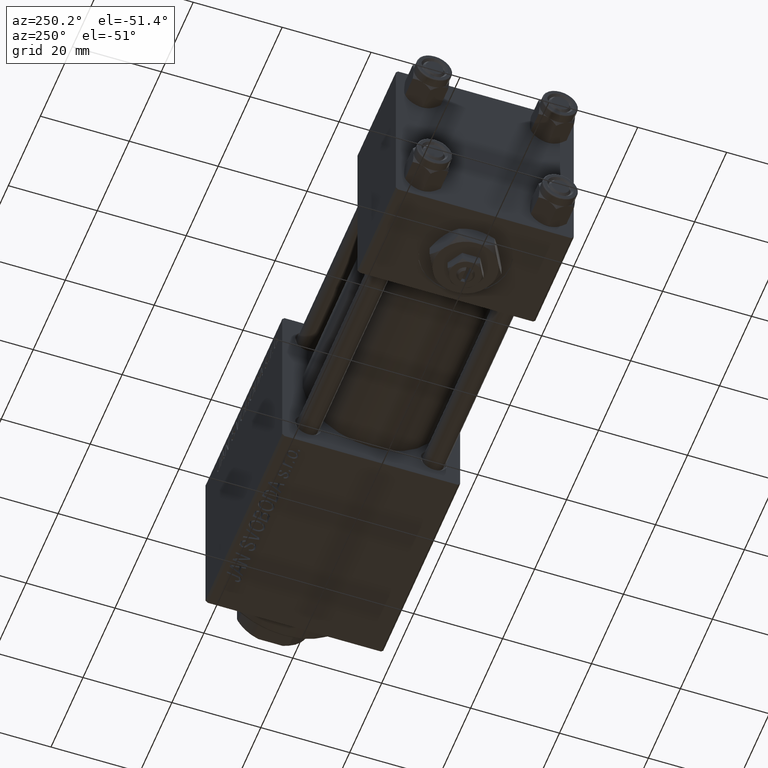
[diagram: clean part render]
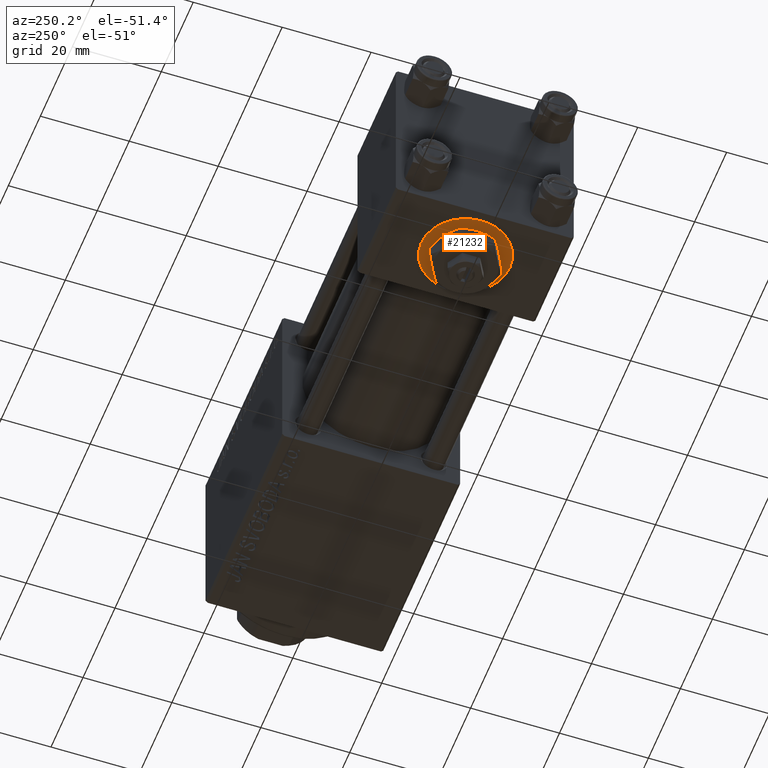
[diagram: same view with one face highlighted and labeled with its STEP entity id]
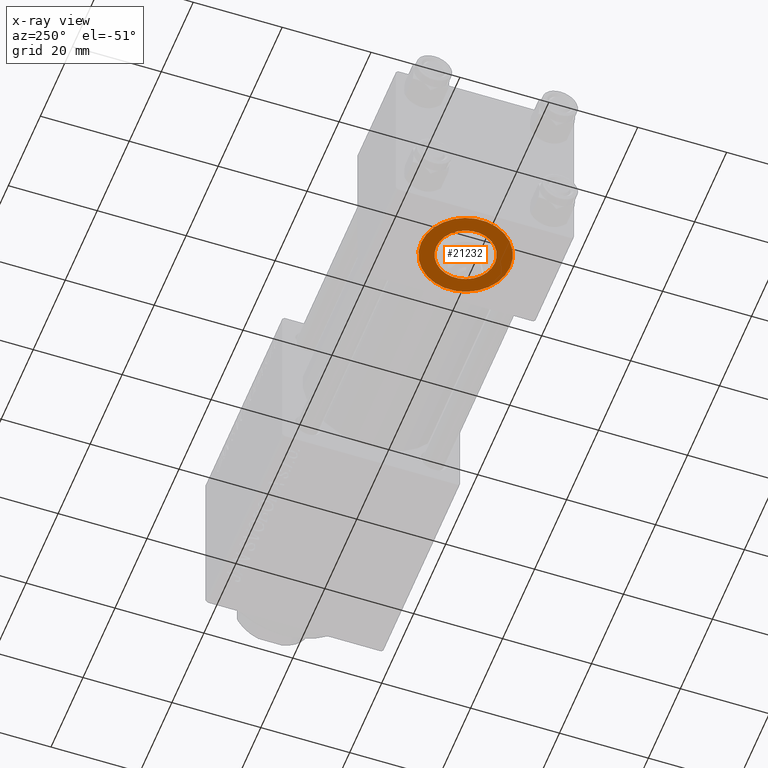
[diagram: x-ray of the same camera — body ghosted, the highlighted face saturated]
A machine part, auxiliary view. The second image highlights one B-rep face of the part: STEP entity #21232.
The next image is the same camera in x-ray: the body ghosted, the highlighted face saturated — about 0% of this face is hidden behind the body in this view.
In plain terms, the highlighted planar face has unit normal (0, -0, -1).
Its self-contained STEP definition (entity closure, byte-faithful):
#1170 = FACE_OUTER_BOUND ( 'NONE', #42435, .T. ) ;
#1188 = CIRCLE ( 'NONE', #8773, 10.00000000000000178 ) ;
#1545 = DIRECTION ( 'NONE',  ( 0.000000000000000000, 1.000000000000000000, 0.000000000000000000 ) ) ;
#4148 = DIRECTION ( 'NONE',  ( 0.000000000000000000, -1.734723475976806848E-16, -1.000000000000000000 ) ) ;
#7782 = DIRECTION ( 'NONE',  ( 0.000000000000000000, 1.000000000000000000, 0.000000000000000000 ) ) ;
#8773 = AXIS2_PLACEMENT_3D ( 'NONE', #45408, #30440, #1545 ) ;
#9542 = EDGE_CURVE ( 'NONE', #39718, #39564, #38296, .T. ) ;
#12289 = CARTESIAN_POINT ( 'NONE',  ( 12.00000000000000000, -4.904328641410902191E-15, -19.80000000000000426 ) ) ;
#14067 = EDGE_CURVE ( 'NONE', #34201, #21012, #19882, .T. ) ;
#14556 = ORIENTED_EDGE ( 'NONE', *, *, #46739, .T. ) ;
#15615 = EDGE_CURVE ( 'NONE', #21012, #34201, #32478, .T. ) ;
#17186 = PLANE ( 'NONE',  #34927 ) ;
#17319 = AXIS2_PLACEMENT_3D ( 'NONE', #43769, #27748, #7782 ) ;
#18594 = CARTESIAN_POINT ( 'NONE',  ( 12.00000000000000000, 6.579999999999994742, -19.80000000000000426 ) ) ;
#19882 = CIRCLE ( 'NONE', #38328, 6.580000000000000071 ) ;
#21012 = VERTEX_POINT ( 'NONE', #45351 ) ;
#21133 = FACE_BOUND ( 'NONE', #22068, .T. ) ;
#21232 = ADVANCED_FACE ( 'NONE', ( #21133, #1170 ), #17186, .T. ) ;
#22068 = EDGE_LOOP ( 'NONE', ( #41904, #42924 ) ) ;
#22233 = CARTESIAN_POINT ( 'NONE',  ( 12.00000000000000178, -10.00000000000000711, -19.80000000000000426 ) ) ;
#25325 = DIRECTION ( 'NONE',  ( 0.000000000000000000, 1.000000000000000000, -1.734723475976806848E-16 ) ) ;
#27444 = AXIS2_PLACEMENT_3D ( 'NONE', #38762, #41923, #49799 ) ;
#27748 = DIRECTION ( 'NONE',  ( 0.000000000000000000, -1.734723475976806848E-16, -1.000000000000000000 ) ) ;
#29467 = CARTESIAN_POINT ( 'NONE',  ( 12.00000000000000000, 9.999999999999996447, -19.80000000000000426 ) ) ;
#30440 = DIRECTION ( 'NONE',  ( 0.000000000000000000, -1.734723475976806848E-16, -1.000000000000000000 ) ) ;
#32478 = CIRCLE ( 'NONE', #27444, 6.580000000000000071 ) ;
#33222 = CARTESIAN_POINT ( 'NONE',  ( 12.00000000000000000, -4.904328641410901403E-15, -19.80000000000000426 ) ) ;
#34201 = VERTEX_POINT ( 'NONE', #18594 ) ;
#34927 = AXIS2_PLACEMENT_3D ( 'NONE', #33222, #49242, #25325 ) ;
#38296 = CIRCLE ( 'NONE', #17319, 10.00000000000000178 ) ;
#38328 = AXIS2_PLACEMENT_3D ( 'NONE', #12289, #4148, #43824 ) ;
#38762 = CARTESIAN_POINT ( 'NONE',  ( 12.00000000000000000, -4.904328641410902191E-15, -19.80000000000000426 ) ) ;
#39564 = VERTEX_POINT ( 'NONE', #22233 ) ;
#39718 = VERTEX_POINT ( 'NONE', #29467 ) ;
#41904 = ORIENTED_EDGE ( 'NONE', *, *, #14067, .F. ) ;
#41923 = DIRECTION ( 'NONE',  ( 0.000000000000000000, -1.734723475976806848E-16, -1.000000000000000000 ) ) ;
#42435 = EDGE_LOOP ( 'NONE', ( #42716, #14556 ) ) ;
#42716 = ORIENTED_EDGE ( 'NONE', *, *, #9542, .T. ) ;
#42924 = ORIENTED_EDGE ( 'NONE', *, *, #15615, .F. ) ;
#43769 = CARTESIAN_POINT ( 'NONE',  ( 12.00000000000000000, -4.904328641410901403E-15, -19.80000000000000426 ) ) ;
#43824 = DIRECTION ( 'NONE',  ( 0.000000000000000000, 1.000000000000000000, 0.000000000000000000 ) ) ;
#45351 = CARTESIAN_POINT ( 'NONE',  ( 12.00000000000000000, -6.580000000000006288, -19.80000000000000426 ) ) ;
#45408 = CARTESIAN_POINT ( 'NONE',  ( 12.00000000000000000, -4.904328641410901403E-15, -19.80000000000000426 ) ) ;
#46739 = EDGE_CURVE ( 'NONE', #39564, #39718, #1188, .T. ) ;
#49242 = DIRECTION ( 'NONE',  ( 0.000000000000000000, -1.734723475976806848E-16, -1.000000000000000000 ) ) ;
#49799 = DIRECTION ( 'NONE',  ( 0.000000000000000000, 1.000000000000000000, 0.000000000000000000 ) ) ;